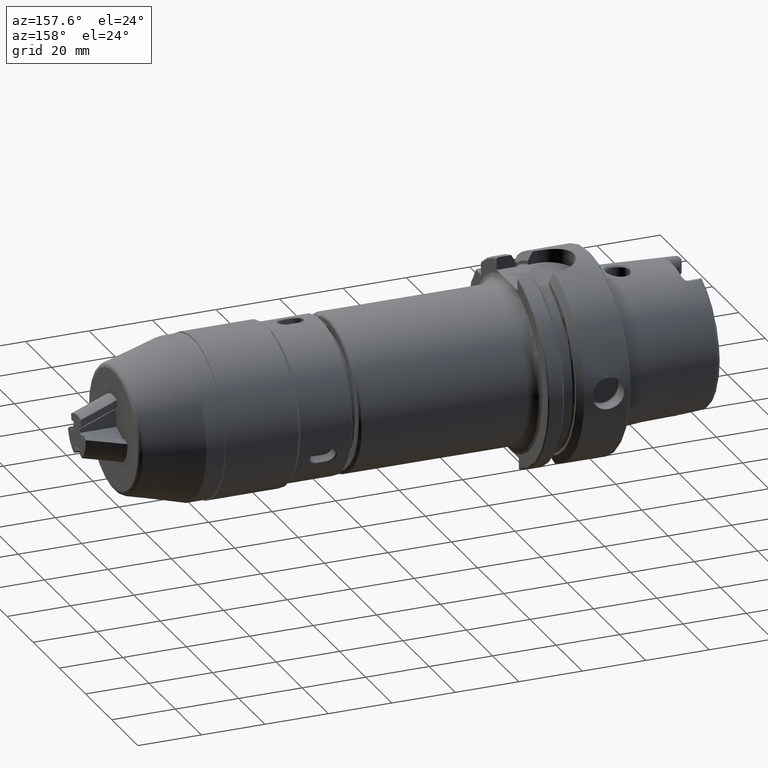
[diagram: clean part render]
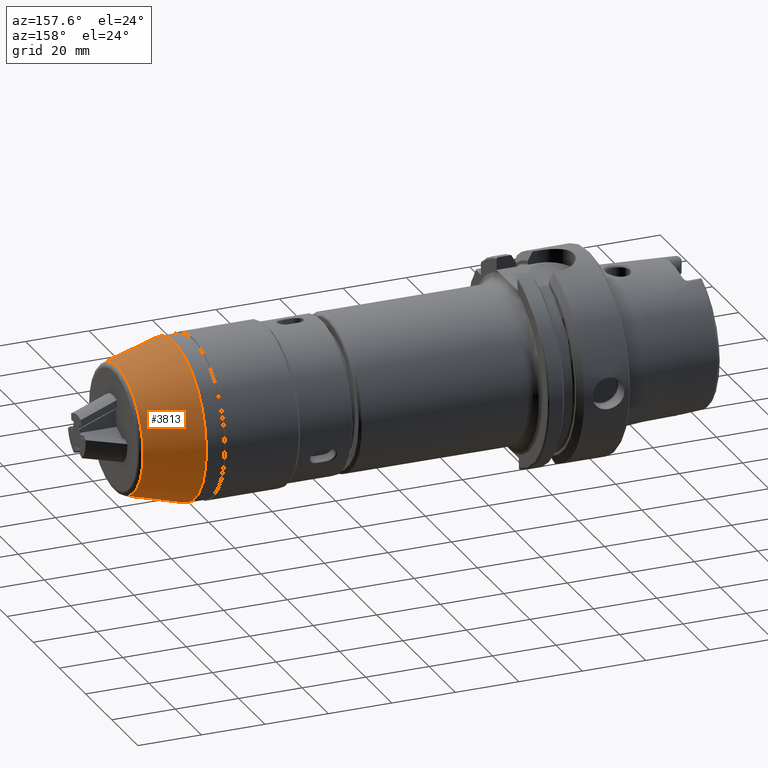
[diagram: same view with one face highlighted and labeled with its STEP entity id]
A machine part, auxiliary view. The second image highlights one B-rep face of the part: STEP entity #3813.
In plain terms, the highlighted conical surface has half-angle 15 deg.
Its self-contained STEP definition (entity closure, byte-faithful):
#116=CONICAL_SURFACE('',#4391,24.7,0.261799387799143);
#308=LINE('',#7344,#543);
#543=VECTOR('',#5315,24.7);
#891=FACE_OUTER_BOUND('',#1113,.T.);
#1113=EDGE_LOOP('',(#3262,#3263,#3264,#3265,#3266,#3267));
#1462=CIRCLE('',#4389,24.7);
#1463=CIRCLE('',#4390,24.7);
#1464=CIRCLE('',#4392,19.8800686820308);
#1465=CIRCLE('',#4393,19.8800686820308);
#1782=VERTEX_POINT('',#7337);
#1783=VERTEX_POINT('',#7339);
#1784=VERTEX_POINT('',#7343);
#1785=VERTEX_POINT('',#7345);
#2298=EDGE_CURVE('',#1782,#1783,#1462,.T.);
#2299=EDGE_CURVE('',#1783,#1782,#1463,.T.);
#2300=EDGE_CURVE('',#1782,#1784,#308,.T.);
#2301=EDGE_CURVE('',#1784,#1785,#1464,.T.);
#2302=EDGE_CURVE('',#1785,#1784,#1465,.T.);
#3262=ORIENTED_EDGE('',*,*,#2299,.F.);
#3263=ORIENTED_EDGE('',*,*,#2298,.F.);
#3264=ORIENTED_EDGE('',*,*,#2300,.T.);
#3265=ORIENTED_EDGE('',*,*,#2301,.T.);
#3266=ORIENTED_EDGE('',*,*,#2302,.T.);
#3267=ORIENTED_EDGE('',*,*,#2300,.F.);
#3813=ADVANCED_FACE('',(#891),#116,.T.);
#4389=AXIS2_PLACEMENT_3D('',#7340,#5309,#5310);
#4390=AXIS2_PLACEMENT_3D('',#7341,#5311,#5312);
#4391=AXIS2_PLACEMENT_3D('',#7342,#5313,#5314);
#4392=AXIS2_PLACEMENT_3D('',#7346,#5316,#5317);
#4393=AXIS2_PLACEMENT_3D('',#7347,#5318,#5319);
#5309=DIRECTION('center_axis',(9.33664374448044E-21,-1.,-2.19361169022002E-20));
#5310=DIRECTION('ref_axis',(4.32986979603811E-15,2.19361169022003E-20,-1.));
#5311=DIRECTION('center_axis',(9.33664374448044E-21,-1.,-2.19361169022002E-20));
#5312=DIRECTION('ref_axis',(4.32986979603811E-15,2.19361169022003E-20,-1.));
#5313=DIRECTION('center_axis',(9.33664374448044E-21,-1.,-2.19361169022002E-20));
#5314=DIRECTION('ref_axis',(4.32986979603811E-15,2.19361169022003E-20,-1.));
#5315=DIRECTION('',(1.1523399390378E-15,0.96592582628907,-0.258819045102515));
#5316=DIRECTION('center_axis',(9.33664374448044E-21,-1.,-2.19361169022002E-20));
#5317=DIRECTION('ref_axis',(4.32986979603811E-15,2.19361169022003E-20,-1.));
#5318=DIRECTION('center_axis',(9.33664374448044E-21,-1.,-2.19361169022002E-20));
#5319=DIRECTION('ref_axis',(4.32986979603811E-15,2.19361169022003E-20,-1.));
#7337=CARTESIAN_POINT('',(-1.09972940721683E-13,29.9,24.7));
#7339=CARTESIAN_POINT('',(1.06947504796493E-13,29.9,-24.7));
#7340=CARTESIAN_POINT('Origin',(-2.79165648036739E-19,29.9,6.55889895421925E-19));
#7341=CARTESIAN_POINT('Origin',(-2.79165648036739E-19,29.9,6.55889895421925E-19));
#7342=CARTESIAN_POINT('Origin',(-2.79165648036739E-19,29.9,6.55889895421925E-19));
#7343=CARTESIAN_POINT('',(-8.85131622926461E-14,47.8882285676538,19.8800686820308));
#7344=CARTESIAN_POINT('',(-1.09972940721683E-13,29.9,24.7));
#7345=CARTESIAN_POINT('',(8.60776618141588E-14,47.8882285676538,-19.8800686820308));
#7346=CARTESIAN_POINT('Origin',(-4.47115329783956E-19,47.8882285676538,
1.05048178014135E-18));
#7347=CARTESIAN_POINT('Origin',(-4.47115329783956E-19,47.8882285676538,
1.05048178014135E-18));